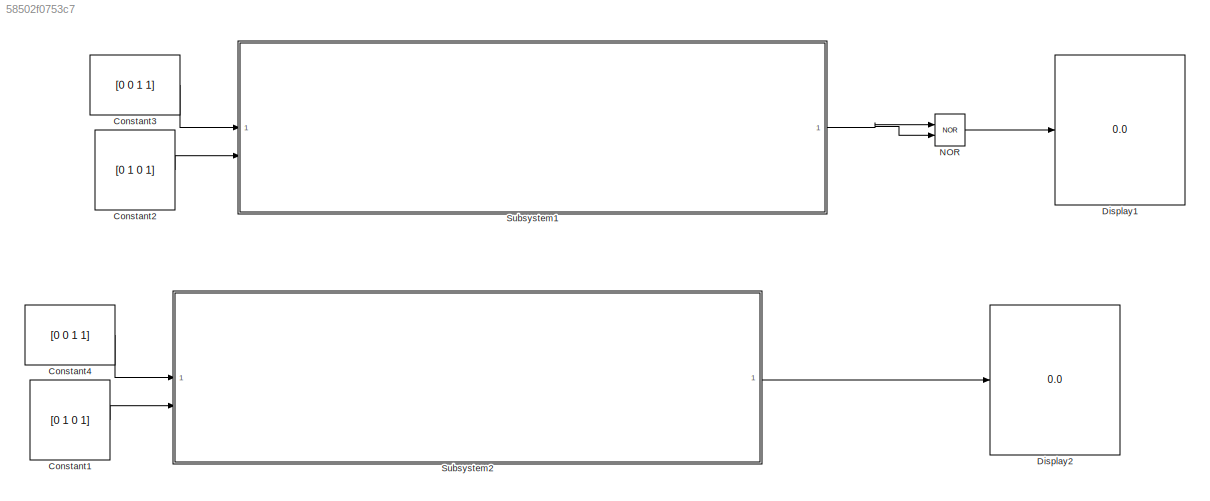
MODEL slx_58502f0753c7
KIND model
CONFIG AbsTol = auto
CONFIG EnableMultiTasking = off
CONFIG FixedStep = auto
CONFIG MaxStep = auto
CONFIG MinStep = auto
CONFIG RelTol = 1e-3
CONFIG SampleTimeConstraint = Unconstrained
CONFIG SolverName = VariableStepAuto
CONFIG StartTime = 0.0
CONFIG StopTime = 10.0
BLOCK [Constant] Constant1
  Value = [0 1 0 1]
BLOCK [Constant] Constant2
  Value = [0 1 0 1]
BLOCK [Constant] Constant3
  Value = [0 0 1 1]
BLOCK [Constant] Constant4
  Value = [0 0 1 1]
BLOCK [Display] Display1
  Decimation = 1
BLOCK [Display] Display2
  Decimation = 1
BLOCK [Logic] NOR
  AllPortsSameDT = off
  IconShape = distinctive
  Operator = NOR
  OutDataTypeStr = boolean
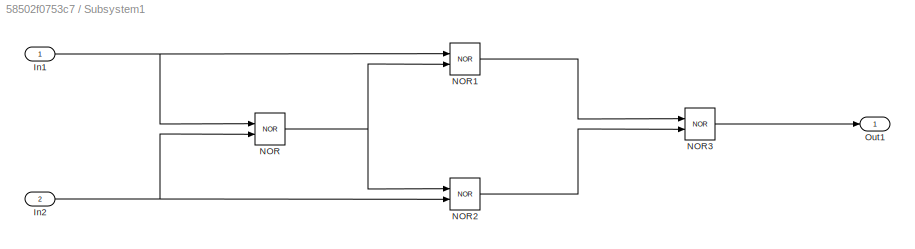
BLOCK [SubSystem] Subsystem1
BLOCK [Inport] Subsystem1/In1
BLOCK [Inport] Subsystem1/In2
  Port = 2
BLOCK [Logic] Subsystem1/NOR
  AllPortsSameDT = off
  IconShape = distinctive
  Operator = NOR
  OutDataTypeStr = boolean
BLOCK [Logic] Subsystem1/NOR1
  AllPortsSameDT = off
  IconShape = distinctive
  Operator = NOR
  OutDataTypeStr = boolean
BLOCK [Logic] Subsystem1/NOR2
  AllPortsSameDT = off
  IconShape = distinctive
  Operator = NOR
  OutDataTypeStr = boolean
BLOCK [Logic] Subsystem1/NOR3
  AllPortsSameDT = off
  IconShape = distinctive
  Operator = NOR
  OutDataTypeStr = boolean
BLOCK [Outport] Subsystem1/Out1
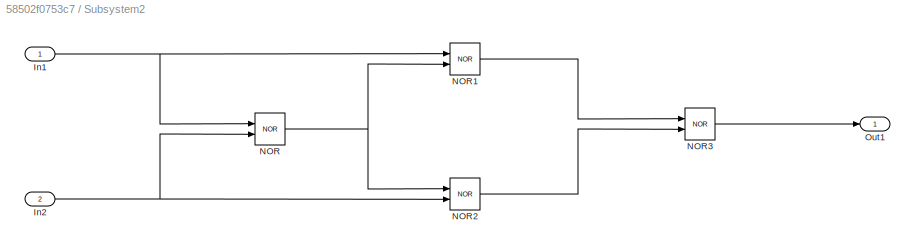
BLOCK [SubSystem] Subsystem2
BLOCK [Inport] Subsystem2/In1
BLOCK [Inport] Subsystem2/In2
  Port = 2
BLOCK [Logic] Subsystem2/NOR
  AllPortsSameDT = off
  IconShape = distinctive
  Operator = NOR
  OutDataTypeStr = boolean
BLOCK [Logic] Subsystem2/NOR1
  AllPortsSameDT = off
  IconShape = distinctive
  Operator = NOR
  OutDataTypeStr = boolean
BLOCK [Logic] Subsystem2/NOR2
  AllPortsSameDT = off
  IconShape = distinctive
  Operator = NOR
  OutDataTypeStr = boolean
BLOCK [Logic] Subsystem2/NOR3
  AllPortsSameDT = off
  IconShape = distinctive
  Operator = NOR
  OutDataTypeStr = boolean
BLOCK [Outport] Subsystem2/Out1
LINE Constant1:1 -> Subsystem2:2
LINE Constant2:1 -> Subsystem1:2
LINE Constant3:1 -> Subsystem1:1
LINE Constant4:1 -> Subsystem2:1
LINE NOR:1 -> Display1:1
NET Subsystem1/In1:1 -> Subsystem1/NOR1:1, Subsystem1/NOR:1
NET Subsystem1/In2:1 -> Subsystem1/NOR2:2, Subsystem1/NOR:2
LINE Subsystem1/NOR1:1 -> Subsystem1/NOR3:1
LINE Subsystem1/NOR2:1 -> Subsystem1/NOR3:2
LINE Subsystem1/NOR3:1 -> Subsystem1/Out1:1
NET Subsystem1/NOR:1 -> Subsystem1/NOR1:2, Subsystem1/NOR2:1
NET Subsystem1:1 -> NOR:1, NOR:2
NET Subsystem2/In1:1 -> Subsystem2/NOR1:1, Subsystem2/NOR:1
NET Subsystem2/In2:1 -> Subsystem2/NOR2:2, Subsystem2/NOR:2
LINE Subsystem2/NOR1:1 -> Subsystem2/NOR3:1
LINE Subsystem2/NOR2:1 -> Subsystem2/NOR3:2
LINE Subsystem2/NOR3:1 -> Subsystem2/Out1:1
NET Subsystem2/NOR:1 -> Subsystem2/NOR1:2, Subsystem2/NOR2:1
LINE Subsystem2:1 -> Display2:1
note: NET lines group one-source signal fan-out (src -> all destinations, sorted); 1:1 wires keep LINE
